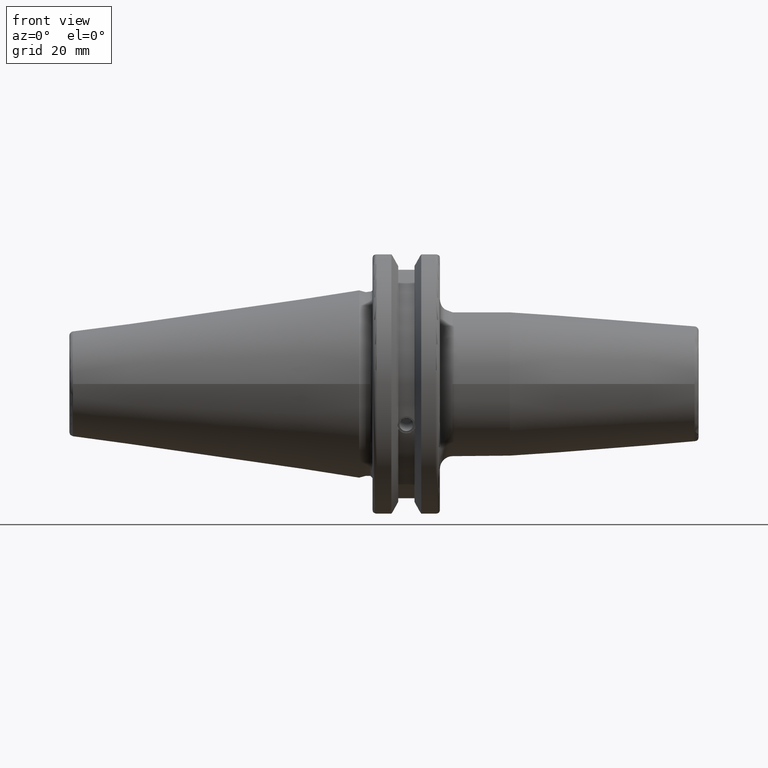
[diagram: clean part render]
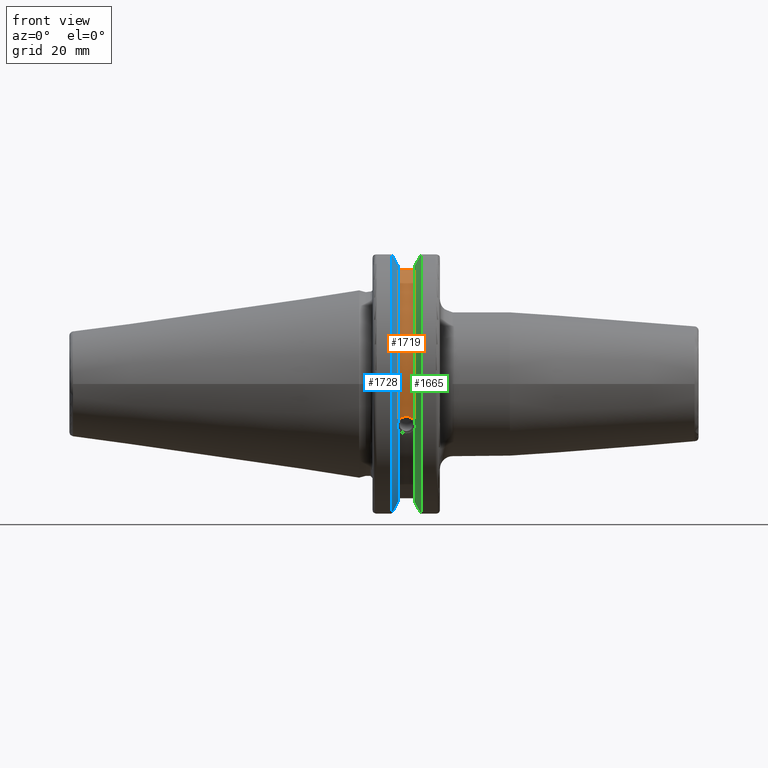
[diagram: same view with three faces highlighted in distinct colors, each labeled with its STEP entity id]
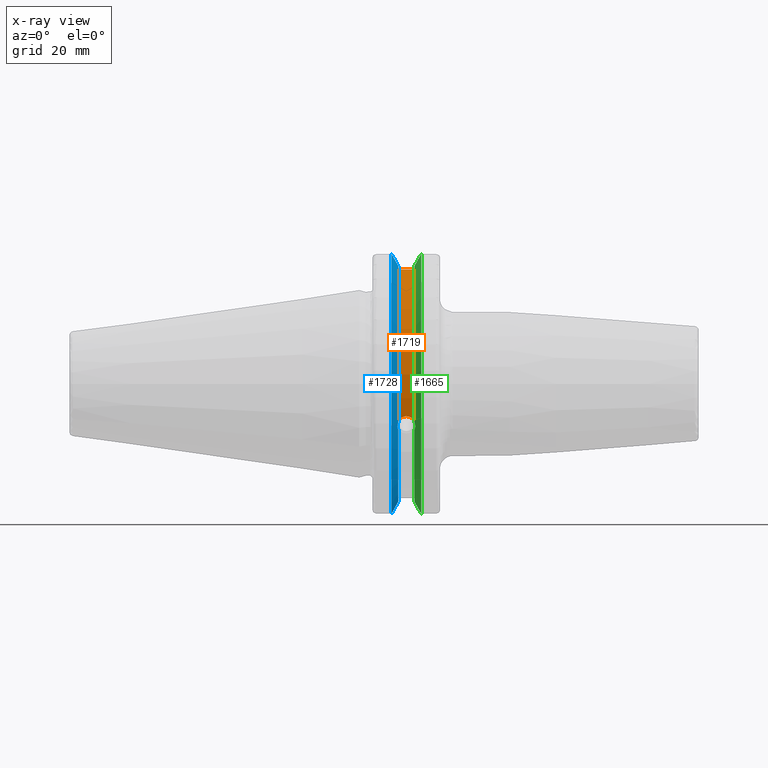
[diagram: x-ray of the same camera — body ghosted, the three highlighted faces saturated]
A machine part, front view with three faces highlighted in distinct colors.
The next image is the same camera in x-ray (body ghosted, the three faces saturated) — at least one of them is partly hidden behind the body in this view.
Their STEP definitions:

[orange] entity #1719 — the highlighted cylindrical surface (partial cylindrical patch) has radius 28.15 mm, axis along (1, 0, 0).
#54=B_SPLINE_CURVE_WITH_KNOTS('',3,(#2697,#2698,#2699,#2700,#2701,#2702,
#2703,#2704,#2705,#2706,#2707,#2708,#2709,#2710),.UNSPECIFIED.,.F.,.F.,
(4,2,2,2,2,2,4),(0.401639126382403,0.474814416953736,0.553950208498303,
0.63308600004287,0.712221791587437,0.791357583132004,0.864532873703336),
 .UNSPECIFIED.);
#106=CYLINDRICAL_SURFACE('',#1942,28.15);
#226=LINE('',#3134,#320);
#320=VECTOR('',#2318,10.);
#438=FACE_OUTER_BOUND('',#539,.T.);
#539=EDGE_LOOP('',(#1575,#1576,#1577,#1578));
#650=CIRCLE('',#1943,28.15);
#651=CIRCLE('',#1944,28.15);
#713=VERTEX_POINT('',#2694);
#714=VERTEX_POINT('',#2696);
#809=VERTEX_POINT('',#3131);
#810=VERTEX_POINT('',#3133);
#912=EDGE_CURVE('',#714,#713,#54,.T.);
#1039=EDGE_CURVE('',#810,#809,#226,.T.);
#1096=EDGE_CURVE('',#810,#713,#650,.T.);
#1097=EDGE_CURVE('',#809,#714,#651,.T.);
#1575=ORIENTED_EDGE('',*,*,#912,.T.);
#1576=ORIENTED_EDGE('',*,*,#1096,.F.);
#1577=ORIENTED_EDGE('',*,*,#1039,.T.);
#1578=ORIENTED_EDGE('',*,*,#1097,.T.);
#1719=ADVANCED_FACE('',(#438),#106,.T.);
#1942=AXIS2_PLACEMENT_3D('',#3294,#2438,#2439);
#1943=AXIS2_PLACEMENT_3D('',#3295,#2440,#2441);
#1944=AXIS2_PLACEMENT_3D('',#3296,#2442,#2443);
#2318=DIRECTION('',(-1.,0.,0.));
#2438=DIRECTION('center_axis',(1.,0.,0.));
#2439=DIRECTION('ref_axis',(0.,-0.887654187951484,0.46051063246378));
#2440=DIRECTION('center_axis',(1.,0.,0.));
#2441=DIRECTION('ref_axis',(0.,0.,-1.));
#2442=DIRECTION('center_axis',(1.,0.,0.));
#2443=DIRECTION('ref_axis',(0.,0.,-1.));
#2694=CARTESIAN_POINT('',(13.0491,-26.734714844398,-8.81348524641211));
#2696=CARTESIAN_POINT('',(9.2191,-26.734714844398,-8.81348524641212));
#2697=CARTESIAN_POINT('Ctrl Pts',(9.2191,-26.734714844398,-8.81348524641212));
#2698=CARTESIAN_POINT('Ctrl Pts',(9.32533057097183,-26.8086519721597,-8.58920529678291));
#2699=CARTESIAN_POINT('Ctrl Pts',(9.47682013770509,-26.8729987454904,-8.38416529997369));
#2700=CARTESIAN_POINT('Ctrl Pts',(9.83557062657411,-26.9778908791383,-8.04056861831091));
#2701=CARTESIAN_POINT('Ctrl Pts',(10.0716450112988,-27.0233016799732,-7.88512567185902));
#2702=CARTESIAN_POINT('Ctrl Pts',(10.5890125426388,-27.0826966800569,-7.6786444840004));
#2703=CARTESIAN_POINT('Ctrl Pts',(10.8703140281848,-27.0968804077294,-7.62768458768512));
#2704=CARTESIAN_POINT('Ctrl Pts',(11.3978859718152,-27.0968804077294,-7.62768458768512));
#2705=CARTESIAN_POINT('Ctrl Pts',(11.6791874573612,-27.0826966800569,-7.6786444840004));
#2706=CARTESIAN_POINT('Ctrl Pts',(12.1965549887012,-27.0233016799732,-7.88512567185902));
#2707=CARTESIAN_POINT('Ctrl Pts',(12.4326293734259,-26.9778908791383,-8.04056861831091));
#2708=CARTESIAN_POINT('Ctrl Pts',(12.7913798622949,-26.8729987454904,-8.38416529997369));
#2709=CARTESIAN_POINT('Ctrl Pts',(12.9428694290282,-26.8086519721597,-8.5892052967829));
#2710=CARTESIAN_POINT('Ctrl Pts',(13.0491,-26.734714844398,-8.81348524641211));
#3131=CARTESIAN_POINT('',(9.2191,-8.19,26.932255754021));
#3133=CARTESIAN_POINT('',(13.0491,-8.19,26.932255754021));
#3134=CARTESIAN_POINT('',(11.1341,-8.19,26.932255754021));
#3294=CARTESIAN_POINT('Origin',(11.1341,0.,0.));
#3295=CARTESIAN_POINT('Origin',(13.0491,0.,0.));
#3296=CARTESIAN_POINT('Origin',(9.2191,0.,0.));

[blue] entity #1728 — the highlighted conical surface has half-angle 60 deg.
#25=(
BOUNDED_CURVE()
B_SPLINE_CURVE(2,(#3128,#3129,#3130),.UNSPECIFIED.,.F.,.F.)
B_SPLINE_CURVE_WITH_KNOTS((3,3),(0.,0.276549142796136),.UNSPECIFIED.)
CURVE()
GEOMETRIC_REPRESENTATION_ITEM()
RATIONAL_B_SPLINE_CURVE((1.,1.00095203903316,1.00031614444813))
REPRESENTATION_ITEM('')
);
#26=(
BOUNDED_CURVE()
B_SPLINE_CURVE(2,(#3140,#3141,#3142),.UNSPECIFIED.,.F.,.F.)
B_SPLINE_CURVE_WITH_KNOTS((3,3),(0.0550586467392022,0.33160778953585),
 .UNSPECIFIED.)
CURVE()
GEOMETRIC_REPRESENTATION_ITEM()
RATIONAL_B_SPLINE_CURVE((1.00031614445148,1.00095203904325,1.))
REPRESENTATION_ITEM('')
);
#27=(
BOUNDED_CURVE()
B_SPLINE_CURVE(2,(#3175,#3176,#3177),.UNSPECIFIED.,.F.,.F.)
B_SPLINE_CURVE_WITH_KNOTS((3,3),(0.,0.0639048713676282),.UNSPECIFIED.)
CURVE()
GEOMETRIC_REPRESENTATION_ITEM()
RATIONAL_B_SPLINE_CURVE((1.,1.00028444218284,1.00047644010574))
REPRESENTATION_ITEM('')
);
#28=(
BOUNDED_CURVE()
B_SPLINE_CURVE(2,(#3183,#3184,#3185),.UNSPECIFIED.,.F.,.F.)
B_SPLINE_CURVE_WITH_KNOTS((3,3),(0.329353533631205,0.393258405001025),
 .UNSPECIFIED.)
CURVE()
GEOMETRIC_REPRESENTATION_ITEM()
RATIONAL_B_SPLINE_CURVE((1.00047644010572,1.00028444218283,1.))
REPRESENTATION_ITEM('')
);
#55=B_SPLINE_CURVE_WITH_KNOTS('',3,(#2714,#2715,#2716,#2717,#2718,#2719,
#2720,#2721,#2722,#2723,#2724,#2725,#2726,#2727),.UNSPECIFIED.,.F.,.F.,
(4,2,2,2,2,2,4),(0.451995700189024,0.464547828547663,0.504528771685167,
0.544509714822672,0.584490657960178,0.624471601097683,0.63702372945632),
 .UNSPECIFIED.);
#361=CONICAL_SURFACE('',#1958,30.3546886482472,1.0471975511966);
#447=FACE_OUTER_BOUND('',#550,.T.);
#550=EDGE_LOOP('',(#1623,#1624,#1625,#1626,#1627,#1628,#1629,#1630));
#598=CIRCLE('',#1831,28.9593772964944);
#631=CIRCLE('',#1900,31.75);
#657=CIRCLE('',#1959,28.9593772964944);
#715=VERTEX_POINT('',#2711);
#716=VERTEX_POINT('',#2713);
#736=VERTEX_POINT('',#2812);
#807=VERTEX_POINT('',#3125);
#808=VERTEX_POINT('',#3127);
#811=VERTEX_POINT('',#3139);
#815=VERTEX_POINT('',#3173);
#816=VERTEX_POINT('',#3179);
#914=EDGE_CURVE('',#716,#715,#55,.T.);
#941=EDGE_CURVE('',#716,#736,#598,.T.);
#1037=EDGE_CURVE('',#808,#807,#25,.T.);
#1043=EDGE_CURVE('',#811,#736,#26,.T.);
#1051=EDGE_CURVE('',#815,#807,#27,.T.);
#1053=EDGE_CURVE('',#815,#816,#631,.T.);
#1054=EDGE_CURVE('',#811,#816,#28,.T.);
#1106=EDGE_CURVE('',#808,#715,#657,.T.);
#1623=ORIENTED_EDGE('',*,*,#914,.T.);
#1624=ORIENTED_EDGE('',*,*,#1106,.F.);
#1625=ORIENTED_EDGE('',*,*,#1037,.T.);
#1626=ORIENTED_EDGE('',*,*,#1051,.F.);
#1627=ORIENTED_EDGE('',*,*,#1053,.T.);
#1628=ORIENTED_EDGE('',*,*,#1054,.F.);
#1629=ORIENTED_EDGE('',*,*,#1043,.T.);
#1630=ORIENTED_EDGE('',*,*,#941,.F.);
#1728=ADVANCED_FACE('',(#447),#361,.T.);
#1831=AXIS2_PLACEMENT_3D('',#2813,#2155,#2156);
#1900=AXIS2_PLACEMENT_3D('',#3181,#2336,#2337);
#1958=AXIS2_PLACEMENT_3D('',#3317,#2473,#2474);
#1959=AXIS2_PLACEMENT_3D('',#3318,#2475,#2476);
#2155=DIRECTION('center_axis',(1.,0.,0.));
#2156=DIRECTION('ref_axis',(0.,0.,-1.));
#2336=DIRECTION('center_axis',(1.,0.,0.));
#2337=DIRECTION('ref_axis',(0.,0.,-1.));
#2473=DIRECTION('center_axis',(-1.,0.,0.));
#2474=DIRECTION('ref_axis',(0.,-1.,-1.22464679914735E-16));
#2475=DIRECTION('center_axis',(1.,0.,0.));
#2476=DIRECTION('ref_axis',(0.,0.,-1.));
#2711=CARTESIAN_POINT('',(9.2191,-27.4956274489925,-9.09043478536245));
#2713=CARTESIAN_POINT('',(9.2191,-26.9060914640648,-10.7101715919071));
#2714=CARTESIAN_POINT('Ctrl Pts',(9.2191,-26.9060914640648,-10.7101715919071));
#2715=CARTESIAN_POINT('Ctrl Pts',(9.20497959280038,-26.9406927482839,-10.6893765730703));
#2716=CARTESIAN_POINT('Ctrl Pts',(9.19150701821433,-26.9744191989197,-10.6676007180673));
#2717=CARTESIAN_POINT('Ctrl Pts',(9.13811855884095,-27.1113422433189,-10.5723885976054));
#2718=CARTESIAN_POINT('Ctrl Pts',(9.09998029158246,-27.2180531796526,-10.4801333026531));
#2719=CARTESIAN_POINT('Ctrl Pts',(9.04778935539424,-27.3968610665578,-10.2639559818059));
#2720=CARTESIAN_POINT('Ctrl Pts',(9.0341,-27.4684373304961,-10.139516340139));
#2721=CARTESIAN_POINT('Ctrl Pts',(9.0341,-27.559599249844,-9.8890510252165));
#2722=CARTESIAN_POINT('Ctrl Pts',(9.04778935539424,-27.5847569104122,-9.74771639360671));
#2723=CARTESIAN_POINT('Ctrl Pts',(9.09998029158246,-27.5867382255984,-9.46717946402648));
#2724=CARTESIAN_POINT('Ctrl Pts',(9.13811855884095,-27.5642934663232,-9.32791534028655));
#2725=CARTESIAN_POINT('Ctrl Pts',(9.19150701821434,-27.5206055003512,-9.16696618806877));
#2726=CARTESIAN_POINT('Ctrl Pts',(9.20497959280038,-27.5087667900418,-9.12860597076217));
#2727=CARTESIAN_POINT('Ctrl Pts',(9.2191,-27.4956274489925,-9.09043478536245));
#2812=CARTESIAN_POINT('',(9.2191,-8.19,-27.7771386827498));
#2813=CARTESIAN_POINT('Origin',(9.2191,0.,0.));
#3125=CARTESIAN_POINT('',(7.88668530351257,-8.19,30.1755016258903));
#3127=CARTESIAN_POINT('',(9.2191,-8.19,27.7771386827498));
#3128=CARTESIAN_POINT('Ctrl Pts',(9.2191,-8.19,27.7771386827498));
#3129=CARTESIAN_POINT('Ctrl Pts',(8.58046356152393,-8.19,28.9303689539705));
#3130=CARTESIAN_POINT('Ctrl Pts',(7.88668530351257,-8.19,30.1755016258903));
#3139=CARTESIAN_POINT('',(7.88668530351256,-8.19,-30.1755016258903));
#3140=CARTESIAN_POINT('Ctrl Pts',(7.88668530351256,-8.19,-30.1755016258903));
#3141=CARTESIAN_POINT('Ctrl Pts',(8.5804635615235,-8.19,-28.9303689539712));
#3142=CARTESIAN_POINT('Ctrl Pts',(9.2191,-8.19,-27.7771386827498));
#3173=CARTESIAN_POINT('',(7.60793323092436,-8.67204822802685,30.5427254764662));
#3175=CARTESIAN_POINT('Ctrl Pts',(7.60793323092436,-8.67204822802686,30.5427254764662));
#3176=CARTESIAN_POINT('Ctrl Pts',(7.74899148121626,-8.42917748262648,30.357706789263));
#3177=CARTESIAN_POINT('Ctrl Pts',(7.88668530351257,-8.19,30.1755016258903));
#3179=CARTESIAN_POINT('',(7.60793323092436,-8.67204822802685,-30.5427254764662));
#3181=CARTESIAN_POINT('Origin',(7.60793323092436,0.,0.));
#3183=CARTESIAN_POINT('Ctrl Pts',(7.88668530351256,-8.19,-30.1755016258903));
#3184=CARTESIAN_POINT('Ctrl Pts',(7.74899148121159,-8.42917748263467,-30.3577067892692));
#3185=CARTESIAN_POINT('Ctrl Pts',(7.60793323092435,-8.67204822802687,-30.5427254764662));
#3317=CARTESIAN_POINT('Origin',(8.41351661546218,0.,0.));
#3318=CARTESIAN_POINT('Origin',(9.2191,0.,0.));

[green] entity #1665 — the highlighted conical surface has half-angle 60 deg.
#15=(
BOUNDED_CURVE()
B_SPLINE_CURVE(2,(#2785,#2786,#2787),.UNSPECIFIED.,.F.,.F.)
B_SPLINE_CURVE_WITH_KNOTS((3,3),(0.,0.276549142795512),.UNSPECIFIED.)
CURVE()
GEOMETRIC_REPRESENTATION_ITEM()
RATIONAL_B_SPLINE_CURVE((1.,1.00095203904184,1.00031614445102))
REPRESENTATION_ITEM('')
);
#16=(
BOUNDED_CURVE()
B_SPLINE_CURVE(2,(#2789,#2790,#2791),.UNSPECIFIED.,.F.,.F.)
B_SPLINE_CURVE_WITH_KNOTS((3,3),(0.,0.0639048713675663),.UNSPECIFIED.)
CURVE()
GEOMETRIC_REPRESENTATION_ITEM()
RATIONAL_B_SPLINE_CURVE((1.,1.00028444218286,1.00047644010578))
REPRESENTATION_ITEM('')
);
#17=(
BOUNDED_CURVE()
B_SPLINE_CURVE(2,(#2795,#2796,#2797),.UNSPECIFIED.,.F.,.F.)
B_SPLINE_CURVE_WITH_KNOTS((3,3),(0.329353533631206,0.393258405001023),
 .UNSPECIFIED.)
CURVE()
GEOMETRIC_REPRESENTATION_ITEM()
RATIONAL_B_SPLINE_CURVE((1.00047644010579,1.00028444218287,1.))
REPRESENTATION_ITEM('')
);
#18=(
BOUNDED_CURVE()
B_SPLINE_CURVE(2,(#2799,#2800,#2801),.UNSPECIFIED.,.F.,.F.)
B_SPLINE_CURVE_WITH_KNOTS((3,3),(0.0550586467393779,0.331607789535852),
 .UNSPECIFIED.)
CURVE()
GEOMETRIC_REPRESENTATION_ITEM()
RATIONAL_B_SPLINE_CURVE((1.00031614444922,1.00095203903643,1.))
REPRESENTATION_ITEM('')
);
#53=B_SPLINE_CURVE_WITH_KNOTS('',3,(#2686,#2687,#2688,#2689,#2690,#2691,
#2692,#2693),.UNSPECIFIED.,.F.,.F.,(4,2,2,4),(0.451995700189024,0.464547828547662,
0.504528771685167,0.544509714822672),.UNSPECIFIED.);
#57=B_SPLINE_CURVE_WITH_KNOTS('',3,(#2748,#2749,#2750,#2751,#2752,#2753,
#2754,#2755),.UNSPECIFIED.,.F.,.F.,(4,2,2,4),(0.544509714822672,0.584490657960178,
0.624471601097683,0.637023729456322),.UNSPECIFIED.);
#352=CONICAL_SURFACE('',#1822,30.3546886482472,1.0471975511966);
#384=FACE_OUTER_BOUND('',#479,.T.);
#479=EDGE_LOOP('',(#1256,#1257,#1258,#1259,#1260,#1261,#1262,#1263,#1264));
#593=CIRCLE('',#1823,28.9593772964944);
#594=CIRCLE('',#1824,31.75);
#595=CIRCLE('',#1825,28.9593772964944);
#711=VERTEX_POINT('',#2683);
#712=VERTEX_POINT('',#2685);
#719=VERTEX_POINT('',#2746);
#728=VERTEX_POINT('',#2782);
#729=VERTEX_POINT('',#2784);
#730=VERTEX_POINT('',#2788);
#731=VERTEX_POINT('',#2792);
#732=VERTEX_POINT('',#2794);
#733=VERTEX_POINT('',#2798);
#910=EDGE_CURVE('',#712,#711,#53,.T.);
#918=EDGE_CURVE('',#711,#719,#57,.T.);
#930=EDGE_CURVE('',#719,#728,#593,.T.);
#931=EDGE_CURVE('',#728,#729,#15,.T.);
#932=EDGE_CURVE('',#730,#729,#16,.T.);
#933=EDGE_CURVE('',#731,#730,#594,.T.);
#934=EDGE_CURVE('',#732,#731,#17,.T.);
#935=EDGE_CURVE('',#732,#733,#18,.T.);
#936=EDGE_CURVE('',#733,#712,#595,.T.);
#1256=ORIENTED_EDGE('',*,*,#910,.T.);
#1257=ORIENTED_EDGE('',*,*,#918,.T.);
#1258=ORIENTED_EDGE('',*,*,#930,.T.);
#1259=ORIENTED_EDGE('',*,*,#931,.T.);
#1260=ORIENTED_EDGE('',*,*,#932,.F.);
#1261=ORIENTED_EDGE('',*,*,#933,.F.);
#1262=ORIENTED_EDGE('',*,*,#934,.F.);
#1263=ORIENTED_EDGE('',*,*,#935,.T.);
#1264=ORIENTED_EDGE('',*,*,#936,.T.);
#1665=ADVANCED_FACE('',(#384),#352,.T.);
#1822=AXIS2_PLACEMENT_3D('',#2781,#2135,#2136);
#1823=AXIS2_PLACEMENT_3D('',#2783,#2137,#2138);
#1824=AXIS2_PLACEMENT_3D('',#2793,#2139,#2140);
#1825=AXIS2_PLACEMENT_3D('',#2802,#2141,#2142);
#2135=DIRECTION('center_axis',(1.,0.,0.));
#2136=DIRECTION('ref_axis',(0.,-1.,-1.22464679914735E-16));
#2137=DIRECTION('center_axis',(1.,0.,0.));
#2138=DIRECTION('ref_axis',(0.,0.,-1.));
#2139=DIRECTION('center_axis',(1.,0.,0.));
#2140=DIRECTION('ref_axis',(0.,0.,-1.));
#2141=DIRECTION('center_axis',(1.,0.,0.));
#2142=DIRECTION('ref_axis',(0.,0.,-1.));
#2683=CARTESIAN_POINT('',(13.2341,-27.51401829017,-10.0142836826777));
#2685=CARTESIAN_POINT('',(13.0491,-27.4956274489925,-9.09043478536245));
#2686=CARTESIAN_POINT('Ctrl Pts',(13.0491,-27.4956274489925,-9.09043478536245));
#2687=CARTESIAN_POINT('Ctrl Pts',(13.0632204071996,-27.5087667900418,-9.12860597076217));
#2688=CARTESIAN_POINT('Ctrl Pts',(13.0766929817857,-27.5206055003512,-9.16696618806877));
#2689=CARTESIAN_POINT('Ctrl Pts',(13.130081441159,-27.5642934663232,-9.32791534028656));
#2690=CARTESIAN_POINT('Ctrl Pts',(13.1682197084175,-27.5867382255984,-9.46717946402648));
#2691=CARTESIAN_POINT('Ctrl Pts',(13.2204106446058,-27.5847569104122,-9.74771639360671));
#2692=CARTESIAN_POINT('Ctrl Pts',(13.2341,-27.559599249844,-9.8890510252165));
#2693=CARTESIAN_POINT('Ctrl Pts',(13.2341,-27.51401829017,-10.0142836826777));
#2746=CARTESIAN_POINT('',(13.0491,-26.9060914640648,-10.7101715919071));
#2748=CARTESIAN_POINT('Ctrl Pts',(13.2341,-27.51401829017,-10.0142836826777));
#2749=CARTESIAN_POINT('Ctrl Pts',(13.2341,-27.4684373304961,-10.139516340139));
#2750=CARTESIAN_POINT('Ctrl Pts',(13.2204106446058,-27.3968610665578,-10.2639559818059));
#2751=CARTESIAN_POINT('Ctrl Pts',(13.1682197084175,-27.2180531796526,-10.4801333026531));
#2752=CARTESIAN_POINT('Ctrl Pts',(13.130081441159,-27.1113422433189,-10.5723885976054));
#2753=CARTESIAN_POINT('Ctrl Pts',(13.0766929817857,-26.9744191989197,-10.6676007180673));
#2754=CARTESIAN_POINT('Ctrl Pts',(13.0632204071996,-26.9406927482839,-10.6893765730703));
#2755=CARTESIAN_POINT('Ctrl Pts',(13.0491,-26.9060914640648,-10.7101715919071));
#2781=CARTESIAN_POINT('Origin',(13.8546833845378,0.,0.));
#2782=CARTESIAN_POINT('',(13.0491,-8.19,-27.7771386827498));
#2783=CARTESIAN_POINT('Origin',(13.0491,0.,0.));
#2784=CARTESIAN_POINT('',(14.3815146964874,-8.19,-30.1755016258903));
#2785=CARTESIAN_POINT('Ctrl Pts',(13.0491,-8.19,-27.7771386827498));
#2786=CARTESIAN_POINT('Ctrl Pts',(13.68773643849,-8.19,-28.9303689539956));
#2787=CARTESIAN_POINT('Ctrl Pts',(14.3815146964874,-8.19,-30.1755016258903));
#2788=CARTESIAN_POINT('',(14.6602667690756,-8.67204822802686,-30.5427254764662));
#2789=CARTESIAN_POINT('Ctrl Pts',(14.6602667690756,-8.67204822802687,-30.5427254764662));
#2790=CARTESIAN_POINT('Ctrl Pts',(14.5192085187837,-8.42917748262644,-30.357706789263));
#2791=CARTESIAN_POINT('Ctrl Pts',(14.3815146964874,-8.19,-30.1755016258903));
#2792=CARTESIAN_POINT('',(14.6602667690756,-8.67204822802685,30.5427254764662));
#2793=CARTESIAN_POINT('Origin',(14.6602667690756,0.,0.));
#2794=CARTESIAN_POINT('',(14.3815146964874,-8.19,30.1755016258903));
#2795=CARTESIAN_POINT('Ctrl Pts',(14.3815146964874,-8.19,30.1755016258903));
#2796=CARTESIAN_POINT('Ctrl Pts',(14.5192085187884,-8.42917748263465,30.3577067892692));
#2797=CARTESIAN_POINT('Ctrl Pts',(14.6602667690756,-8.67204822802686,30.5427254764662));
#2798=CARTESIAN_POINT('',(13.0491,-8.19,27.7771386827498));
#2799=CARTESIAN_POINT('Ctrl Pts',(14.3815146964874,-8.19,30.1755016258903));
#2800=CARTESIAN_POINT('Ctrl Pts',(13.687736438474,-8.19,28.9303689539668));
#2801=CARTESIAN_POINT('Ctrl Pts',(13.0491,-8.19,27.7771386827498));
#2802=CARTESIAN_POINT('Origin',(13.0491,0.,0.));